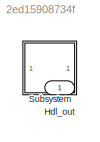
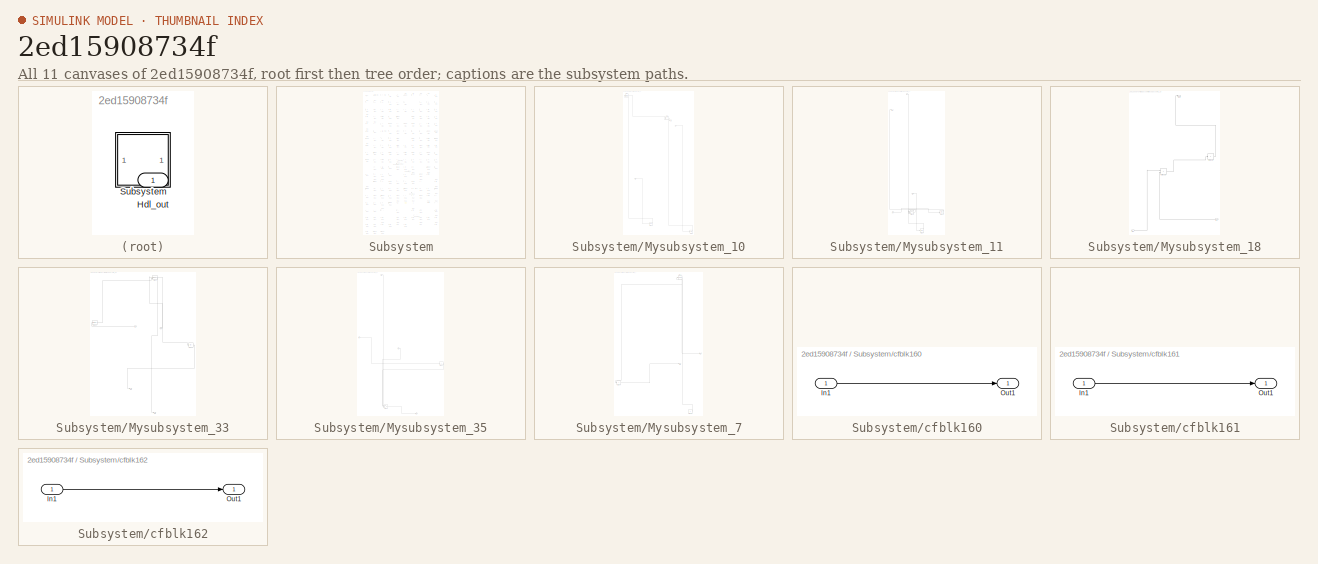
[diagram: thumbnail index - all 11 canvases of the model, root first then tree order]
MODEL slx_2ed15908734f
KIND model
CONFIG AbsTol = auto
CONFIG EnableMultiTasking = off
CONFIG FixedStep = auto
CONFIG MaxStep = auto
CONFIG MinStep = auto
CONFIG RelTol = 1e-3
CONFIG SampleTimeConstraint = Unconstrained
CONFIG SolverName = VariableStepAuto
CONFIG StartTime = 0.0
CONFIG StopTime = 10.0
BLOCK [Outport] Hdl_out
  OutDataTypeStr = uint8
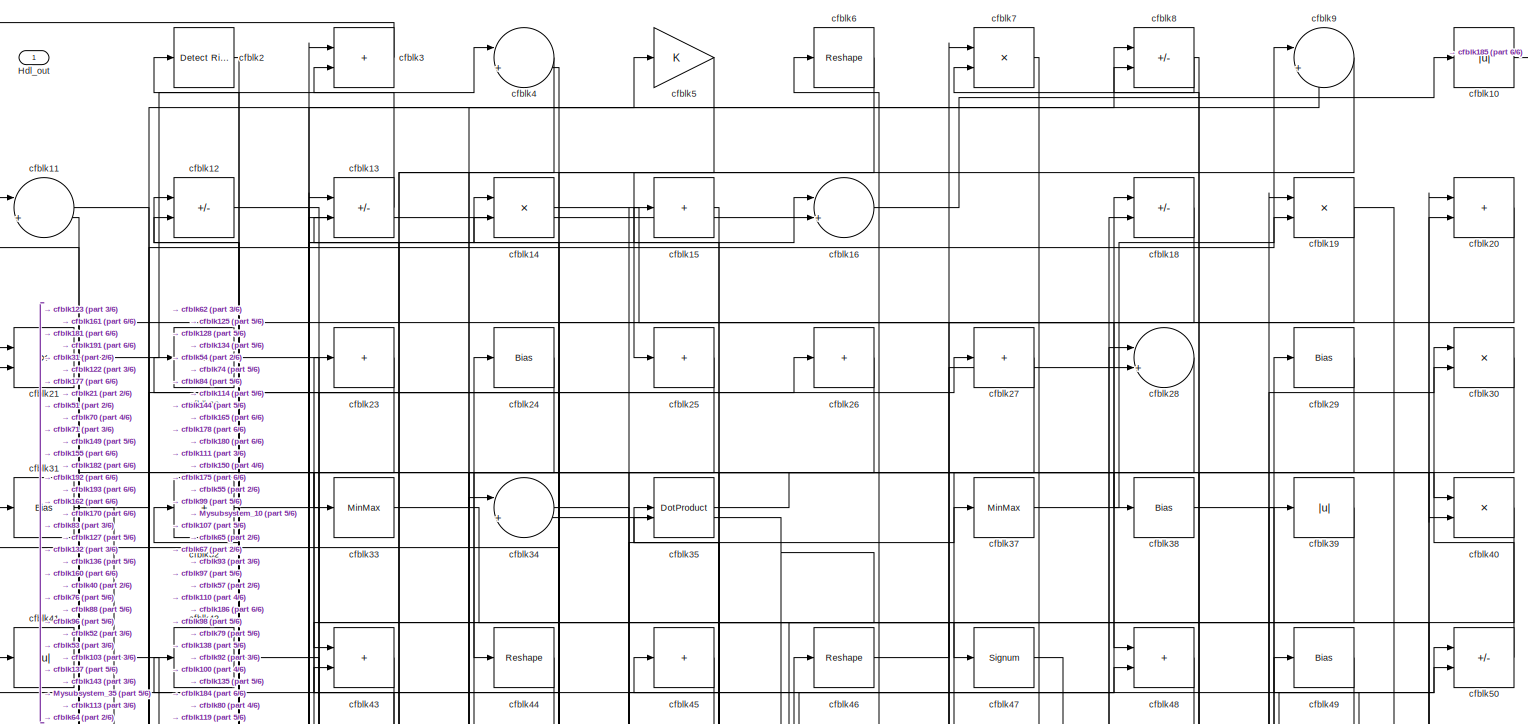
[diagram: Subsystem - part 1/6, full width, top band]
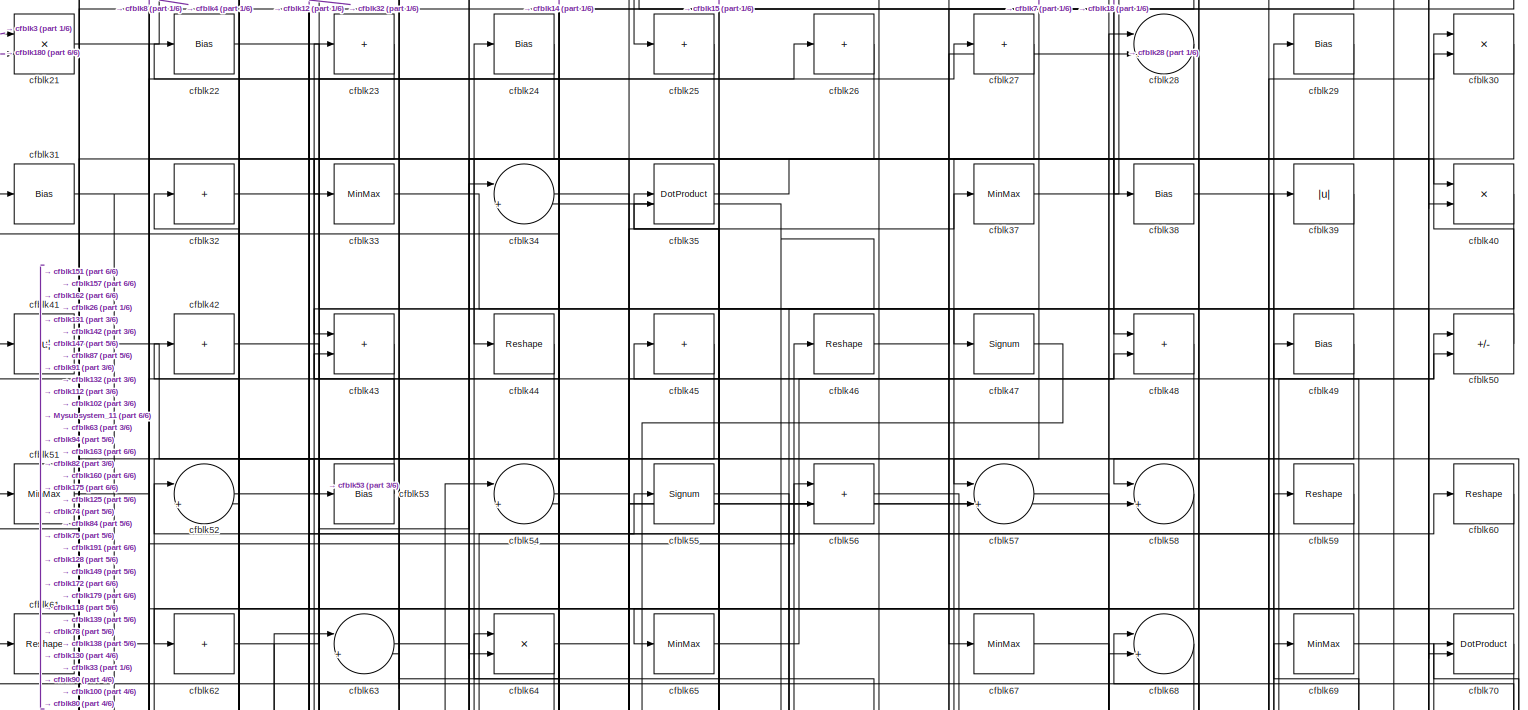
[diagram: Subsystem - part 2/6, full width, top band]
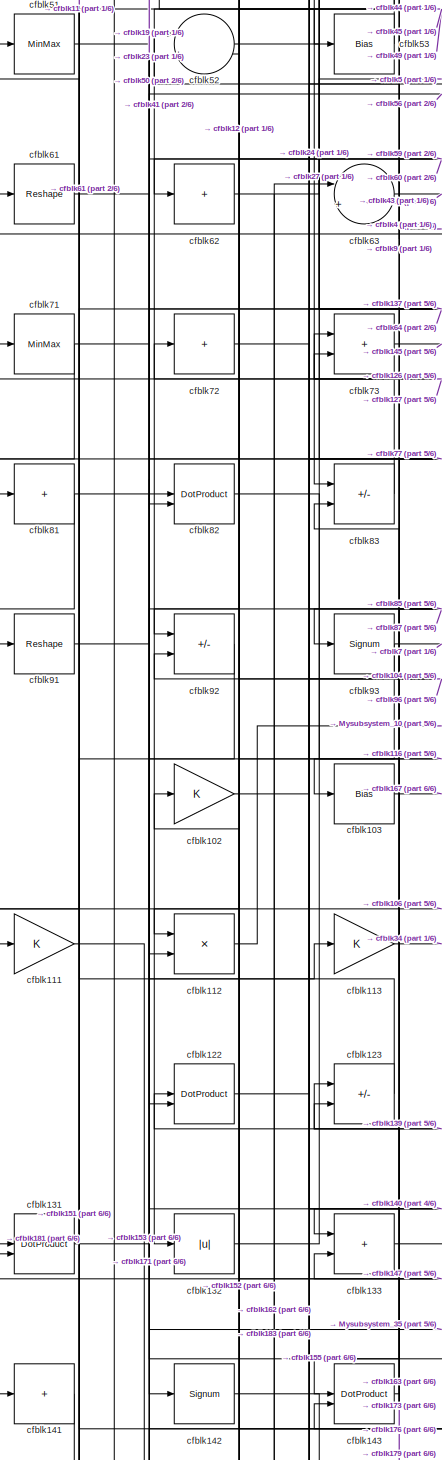
[diagram: Subsystem - part 3/6, middle left region]
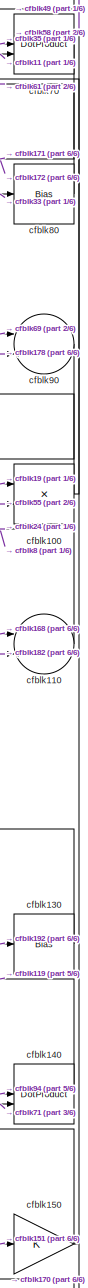
[diagram: Subsystem - part 4/6, middle right region]
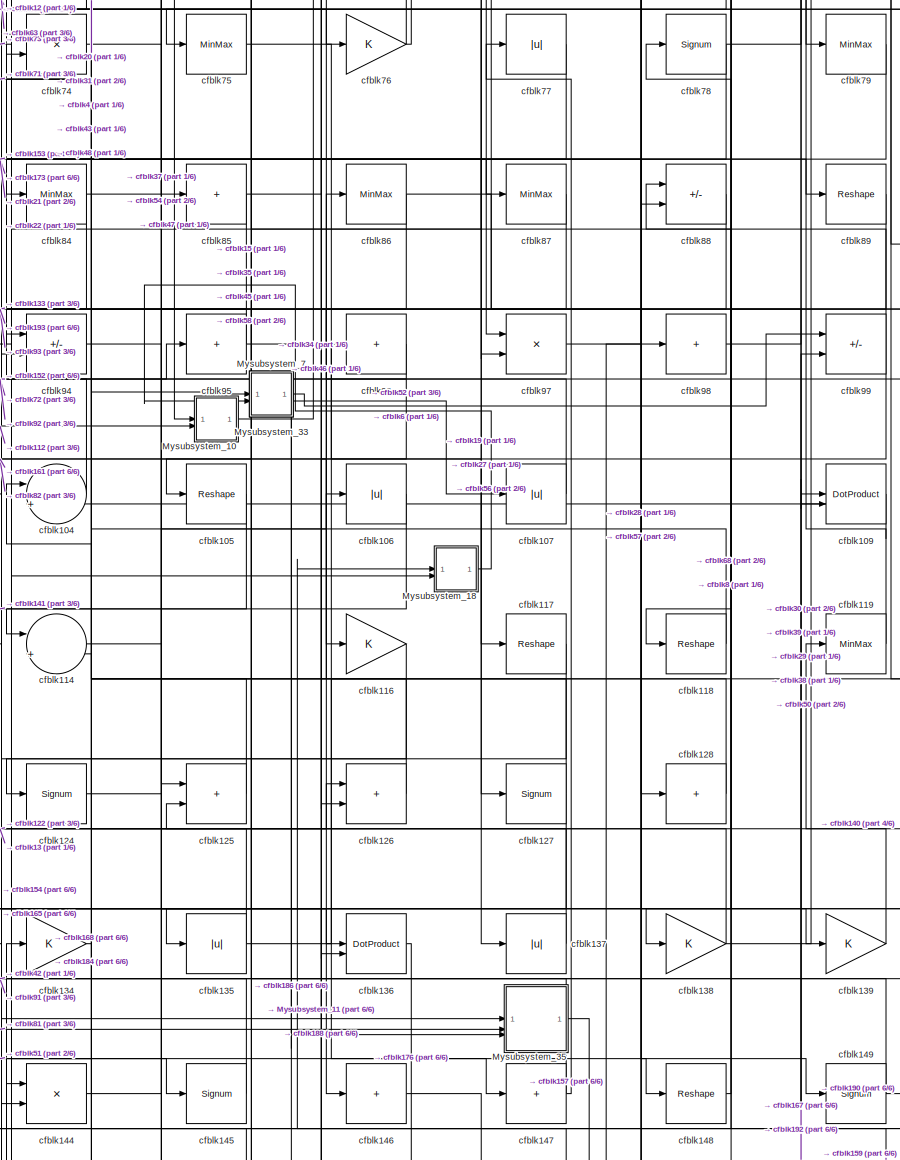
[diagram: Subsystem - part 5/6, central region]
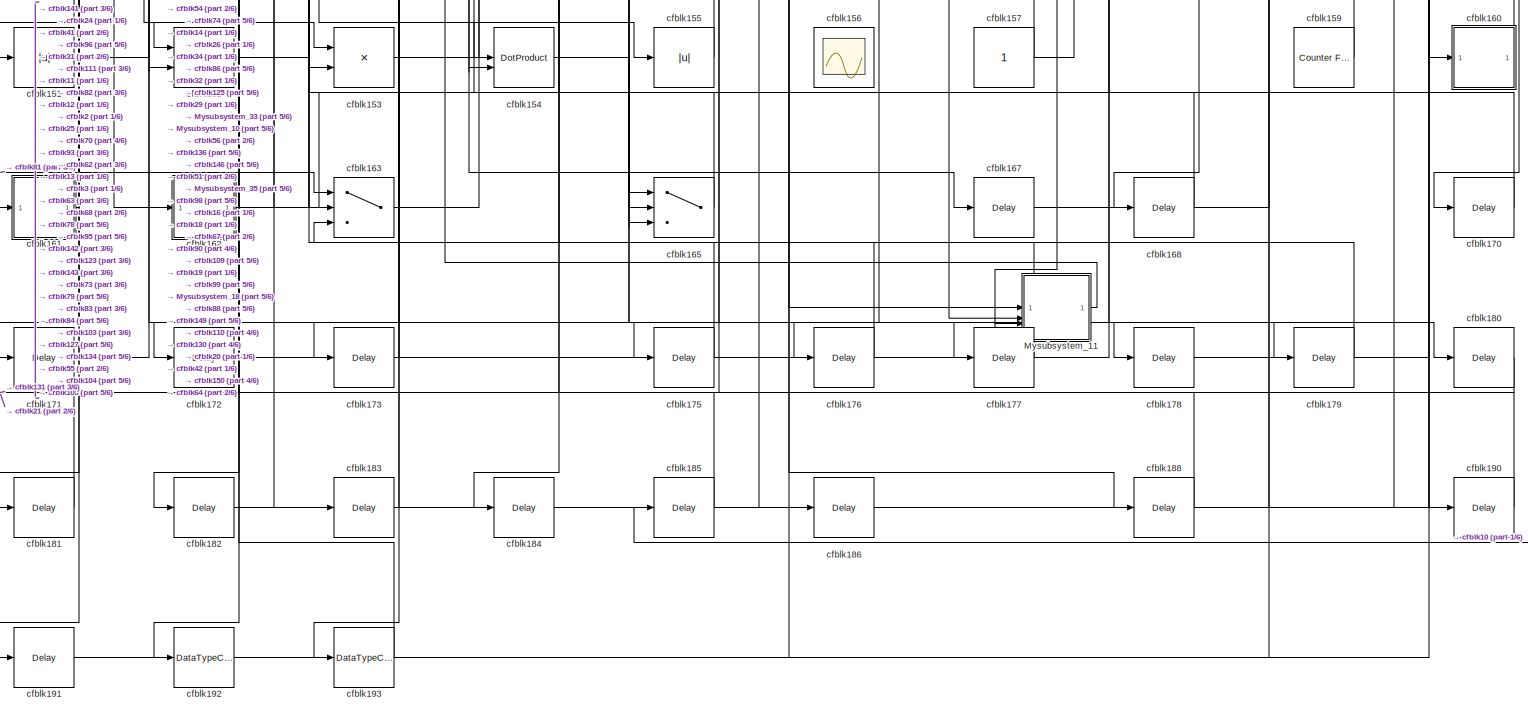
[diagram: Subsystem - part 6/6, full width, bottom band]
BLOCK [SubSystem] Subsystem
BLOCK [Outport] Subsystem/Hdl_out
  OutDataTypeStr = uint8
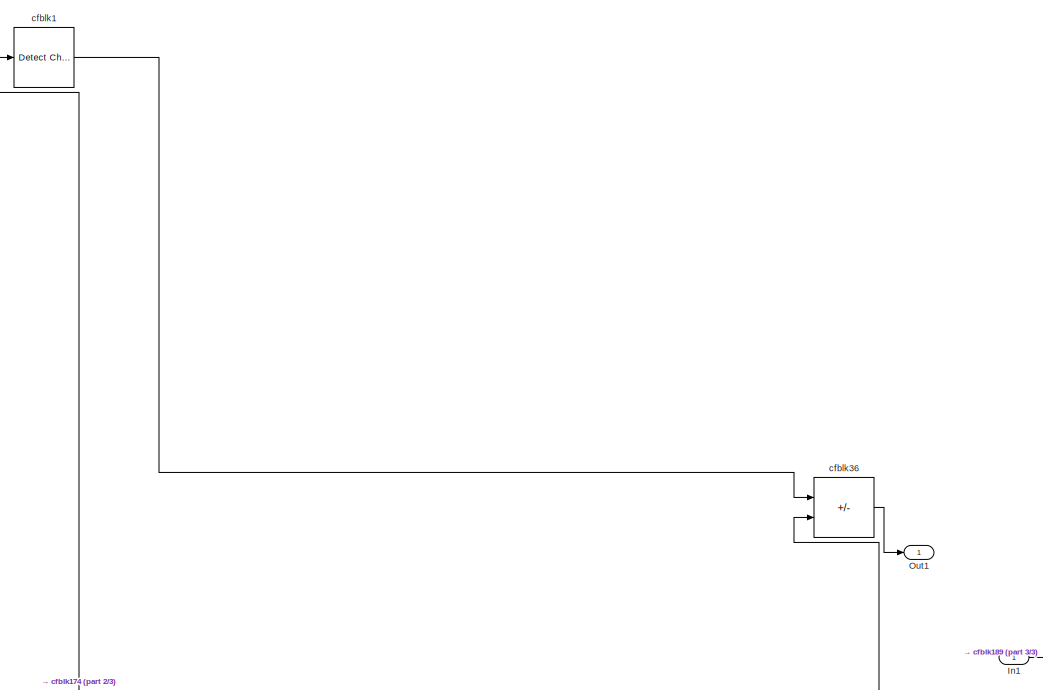
[diagram: Subsystem/Mysubsystem_10 - part 1/3, full width, top band]
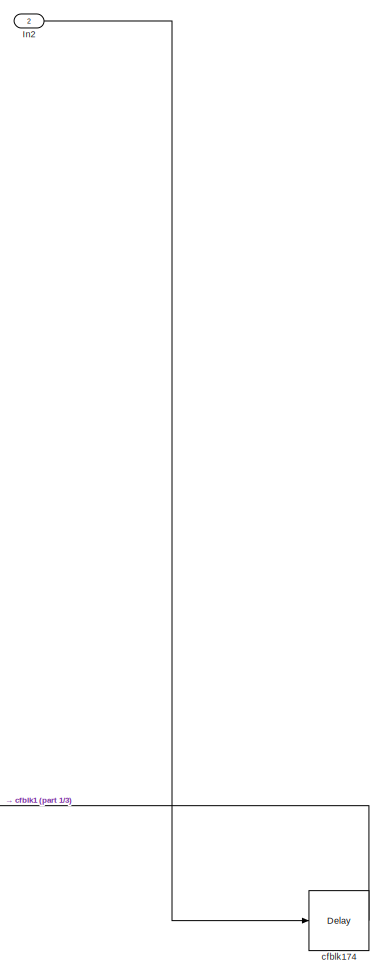
[diagram: Subsystem/Mysubsystem_10 - part 2/3, bottom left region]
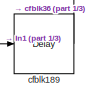
[diagram: Subsystem/Mysubsystem_10 - part 3/3, bottom right region]
BLOCK [SubSystem] Subsystem/Mysubsystem_10
  RTWFcnName = Mysubsystem_10
  RTWFcnNameOpts = User specified
  RTWFileNameOpts = Use function name
  RTWSystemCode = Reusable function
  TreatAsAtomicUnit = on
BLOCK [Inport] Subsystem/Mysubsystem_10/In1
BLOCK [Inport] Subsystem/Mysubsystem_10/In2
  Port = 2
BLOCK [Outport] Subsystem/Mysubsystem_10/Out1
BLOCK [Reference] Subsystem/Mysubsystem_10/cfblk1  REF=simulink/Logic and Bit
Operations/Detect
Change
  LibrarySourceBlock = hdlsllib/Logic and Bit\nOperations/Detect\nChange
  SourceBlock = simulink/Logic and Bit\nOperations/Detect\nChange
  SourceType = Detect Change
BLOCK [Delay] Subsystem/Mysubsystem_10/cfblk174
  InputPortMap = u0
  SampleTime = 1
BLOCK [Delay] Subsystem/Mysubsystem_10/cfblk189
  InputPortMap = u0
  SampleTime = 1
BLOCK [Sum] Subsystem/Mysubsystem_10/cfblk36
  IconShape = rectangular
  Inputs = +-
BLOCK [SubSystem] Subsystem/Mysubsystem_11
  RTWFcnName = Mysubsystem_11
  RTWFcnNameOpts = User specified
  RTWFileNameOpts = Use function name
  RTWSystemCode = Reusable function
  TreatAsAtomicUnit = on
BLOCK [Inport] Subsystem/Mysubsystem_11/In1
BLOCK [Inport] Subsystem/Mysubsystem_11/In2
  Port = 2
BLOCK [Inport] Subsystem/Mysubsystem_11/In3
  Port = 3
BLOCK [Outport] Subsystem/Mysubsystem_11/Out1
BLOCK [Switch] Subsystem/Mysubsystem_11/cfblk166
  InputSameDT = off
  SaturateOnIntegerOverflow = off
BLOCK [Delay] Subsystem/Mysubsystem_11/cfblk169
  InputPortMap = u0
  SampleTime = 1
BLOCK [Delay] Subsystem/Mysubsystem_11/cfblk187
  InputPortMap = u0
  SampleTime = 1
BLOCK [SubSystem] Subsystem/Mysubsystem_18
  RTWFcnName = Mysubsystem_18
  RTWFcnNameOpts = User specified
  RTWFileNameOpts = Use function name
  RTWSystemCode = Reusable function
  TreatAsAtomicUnit = on
BLOCK [Inport] Subsystem/Mysubsystem_18/In1
BLOCK [Inport] Subsystem/Mysubsystem_18/In2
  Port = 2
BLOCK [Outport] Subsystem/Mysubsystem_18/Out1
BLOCK [Sum] Subsystem/Mysubsystem_18/cfblk108
  IconShape = rectangular
  Inputs = +
BLOCK [Sum] Subsystem/Mysubsystem_18/cfblk115
  IconShape = rectangular
BLOCK [SubSystem] Subsystem/Mysubsystem_33
  RTWFcnName = Mysubsystem_33
  RTWFcnNameOpts = User specified
  RTWFileNameOpts = Use function name
  RTWSystemCode = Reusable function
  TreatAsAtomicUnit = on
BLOCK [Inport] Subsystem/Mysubsystem_33/In1
BLOCK [Inport] Subsystem/Mysubsystem_33/In2
  Port = 2
BLOCK [Outport] Subsystem/Mysubsystem_33/Out1
BLOCK [Outport] Subsystem/Mysubsystem_33/Out2
  Port = 2
BLOCK [MinMax] Subsystem/Mysubsystem_33/cfblk101
BLOCK [Abs] Subsystem/Mysubsystem_33/cfblk129
  SaturateOnIntegerOverflow = off
BLOCK [DotProduct] Subsystem/Mysubsystem_33/cfblk66
  OutDataTypeStr = Inherit: Inherit via internal rule
BLOCK [SubSystem] Subsystem/Mysubsystem_35
  RTWFcnName = Mysubsystem_35
  RTWFcnNameOpts = User specified
  RTWFileNameOpts = Use function name
  RTWSystemCode = Reusable function
  TreatAsAtomicUnit = on
BLOCK [Inport] Subsystem/Mysubsystem_35/In1
BLOCK [Inport] Subsystem/Mysubsystem_35/In2
  Port = 2
BLOCK [Inport] Subsystem/Mysubsystem_35/In3
  Port = 3
BLOCK [Outport] Subsystem/Mysubsystem_35/Out1
BLOCK [Sum] Subsystem/Mysubsystem_35/cfblk120
  IconShape = rectangular
  Inputs = +
BLOCK [Switch] Subsystem/Mysubsystem_35/cfblk164
  InputSameDT = off
  SaturateOnIntegerOverflow = off
BLOCK [SubSystem] Subsystem/Mysubsystem_7
  RTWFcnName = Mysubsystem_7
  RTWFcnNameOpts = User specified
  RTWFileNameOpts = Use function name
  RTWSystemCode = Reusable function
  TreatAsAtomicUnit = on
BLOCK [Outport] Subsystem/Mysubsystem_7/Out1
BLOCK [Outport] Subsystem/Mysubsystem_7/Out2
  Port = 2
BLOCK [Sum] Subsystem/Mysubsystem_7/cfblk121
  IconShape = rectangular
  Inputs = +
BLOCK [Constant] Subsystem/Mysubsystem_7/cfblk158
  SampleTime = -1
BLOCK [Reshape] Subsystem/Mysubsystem_7/cfblk17
BLOCK [Abs] Subsystem/cfblk10
  OutDataTypeStr = uint8
  SaturateOnIntegerOverflow = off
BLOCK [Product] Subsystem/cfblk100
  Inputs = */
  OutDataTypeStr = uint8
  RndMeth = Zero
  SaturateOnIntegerOverflow = on
BLOCK [Gain] Subsystem/cfblk102
  OutDataTypeStr = uint8
BLOCK [Bias] Subsystem/cfblk103
  Bias = 0.0
  SaturateOnIntegerOverflow = off
BLOCK [Sum] Subsystem/cfblk104
  Inputs = |++
  OutDataTypeStr = uint8
BLOCK [Reshape] Subsystem/cfblk105
BLOCK [Abs] Subsystem/cfblk106
  OutDataTypeStr = uint8
  SaturateOnIntegerOverflow = off
BLOCK [Abs] Subsystem/cfblk107
  OutDataTypeStr = uint8
  SaturateOnIntegerOverflow = off
BLOCK [DotProduct] Subsystem/cfblk109
  OutDataTypeStr = uint8
BLOCK [Sum] Subsystem/cfblk11
  Inputs = |++
  OutDataTypeStr = uint8
BLOCK [Sum] Subsystem/cfblk110
  Inputs = |++
  OutDataTypeStr = uint8
BLOCK [Gain] Subsystem/cfblk111
  OutDataTypeStr = uint8
BLOCK [Product] Subsystem/cfblk112
  Inputs = */
  OutDataTypeStr = uint8
  RndMeth = Zero
  SaturateOnIntegerOverflow = on
BLOCK [Gain] Subsystem/cfblk113
  OutDataTypeStr = uint8
BLOCK [Sum] Subsystem/cfblk114
  Inputs = |++
  OutDataTypeStr = uint8
BLOCK [Gain] Subsystem/cfblk116
  OutDataTypeStr = uint8
BLOCK [Reshape] Subsystem/cfblk117
BLOCK [Reshape] Subsystem/cfblk118
BLOCK [MinMax] Subsystem/cfblk119
  OutDataTypeStr = uint8
BLOCK [Sum] Subsystem/cfblk12
  IconShape = rectangular
  Inputs = +-
  OutDataTypeStr = uint8
BLOCK [DotProduct] Subsystem/cfblk122
  OutDataTypeStr = uint8
BLOCK [Sum] Subsystem/cfblk123
  IconShape = rectangular
  Inputs = +-
  OutDataTypeStr = uint8
BLOCK [Signum] Subsystem/cfblk124
BLOCK [Sum] Subsystem/cfblk125
  IconShape = rectangular
  OutDataTypeStr = uint8
BLOCK [Sum] Subsystem/cfblk126
  IconShape = rectangular
  OutDataTypeStr = uint8
BLOCK [Signum] Subsystem/cfblk127
BLOCK [Sum] Subsystem/cfblk128
  IconShape = rectangular
  Inputs = +
  OutDataTypeStr = uint8
BLOCK [Sum] Subsystem/cfblk13
  IconShape = rectangular
  Inputs = +-
  OutDataTypeStr = uint8
BLOCK [Bias] Subsystem/cfblk130
  Bias = 0.0
  SaturateOnIntegerOverflow = off
BLOCK [DotProduct] Subsystem/cfblk131
  OutDataTypeStr = uint8
BLOCK [Abs] Subsystem/cfblk132
  OutDataTypeStr = uint8
  SaturateOnIntegerOverflow = off
BLOCK [Sum] Subsystem/cfblk133
  IconShape = rectangular
  OutDataTypeStr = uint8
BLOCK [Gain] Subsystem/cfblk134
  OutDataTypeStr = uint8
BLOCK [Abs] Subsystem/cfblk135
  OutDataTypeStr = uint8
  SaturateOnIntegerOverflow = off
BLOCK [DotProduct] Subsystem/cfblk136
  OutDataTypeStr = uint8
BLOCK [Abs] Subsystem/cfblk137
  OutDataTypeStr = uint8
  SaturateOnIntegerOverflow = off
BLOCK [Gain] Subsystem/cfblk138
  OutDataTypeStr = uint8
BLOCK [Gain] Subsystem/cfblk139
  OutDataTypeStr = uint8
BLOCK [Product] Subsystem/cfblk14
  Inputs = */
  OutDataTypeStr = uint8
  RndMeth = Zero
  SaturateOnIntegerOverflow = on
BLOCK [DotProduct] Subsystem/cfblk140
  OutDataTypeStr = uint8
BLOCK [Sum] Subsystem/cfblk141
  IconShape = rectangular
  Inputs = +
  OutDataTypeStr = uint8
BLOCK [Signum] Subsystem/cfblk142
BLOCK [DotProduct] Subsystem/cfblk143
  OutDataTypeStr = uint8
BLOCK [Product] Subsystem/cfblk144
  Inputs = */
  OutDataTypeStr = uint8
  RndMeth = Zero
  SaturateOnIntegerOverflow = on
BLOCK [Signum] Subsystem/cfblk145
BLOCK [Sum] Subsystem/cfblk146
  IconShape = rectangular
  Inputs = +
  OutDataTypeStr = uint8
BLOCK [Sum] Subsystem/cfblk147
  IconShape = rectangular
  Inputs = +
  OutDataTypeStr = uint8
BLOCK [Reshape] Subsystem/cfblk148
BLOCK [Signum] Subsystem/cfblk149
BLOCK [Sum] Subsystem/cfblk15
  IconShape = rectangular
  Inputs = +
  OutDataTypeStr = uint8
BLOCK [Gain] Subsystem/cfblk150
  OutDataTypeStr = uint8
BLOCK [Abs] Subsystem/cfblk151
  OutDataTypeStr = uint8
  SaturateOnIntegerOverflow = off
BLOCK [Product] Subsystem/cfblk152
  Inputs = */
  OutDataTypeStr = uint8
  RndMeth = Zero
  SaturateOnIntegerOverflow = on
BLOCK [Product] Subsystem/cfblk153
  Inputs = */
  OutDataTypeStr = uint8
  RndMeth = Zero
  SaturateOnIntegerOverflow = on
BLOCK [DotProduct] Subsystem/cfblk154
  OutDataTypeStr = uint8
BLOCK [Abs] Subsystem/cfblk155
  OutDataTypeStr = uint8
  SaturateOnIntegerOverflow = off
BLOCK [Scope] Subsystem/cfblk156
  Floating = on
  NumInputPorts = 1
  ScopeSpecificationString = Simulink.scopes.TimeScopeBlockCfg('CurrentConfiguration', extmgr.ConfigurationSet(extmgr.Configuration('Core','General UI',true,'FigureColor',[0.156862745098039 0.156862745098039 0.156862745098039]),extmgr.Configuration('Core','Source UI',true),extmgr.Configuration('Sources','WiredSimulink',true,'DataLoggingSaveFormat','StructureWithTime','DataLoggingLimitDataPoints',true,'DataLoggingDecimation','...<+2674ch>
BLOCK [Constant] Subsystem/cfblk157
  OutDataTypeStr = uint8
  SampleTime = -1
BLOCK [Reference] Subsystem/cfblk159  REF=hdlsllib/Sources/Counter
Free-Running
  SourceBlock = hdlsllib/Sources/Counter\nFree-Running
  SourceType = Counter Free-Running
BLOCK [Sum] Subsystem/cfblk16
  Inputs = |++
  OutDataTypeStr = uint8
BLOCK [SubSystem] Subsystem/cfblk160
  LibrarySourceBlock = hdlsllib/Ports &\nSubsystems/Subsystem
BLOCK [Inport] Subsystem/cfblk160/In1
BLOCK [Outport] Subsystem/cfblk160/Out1
BLOCK [SubSystem] Subsystem/cfblk161
  LibrarySourceBlock = hdlsllib/Ports &\nSubsystems/Subsystem
BLOCK [Inport] Subsystem/cfblk161/In1
BLOCK [Outport] Subsystem/cfblk161/Out1
BLOCK [SubSystem] Subsystem/cfblk162
  LibrarySourceBlock = hdlsllib/Ports &\nSubsystems/Subsystem
BLOCK [Inport] Subsystem/cfblk162/In1
BLOCK [Outport] Subsystem/cfblk162/Out1
BLOCK [Switch] Subsystem/cfblk163
  InputSameDT = off
  OutDataTypeStr = uint8
  SaturateOnIntegerOverflow = off
BLOCK [Switch] Subsystem/cfblk165
  InputSameDT = off
  OutDataTypeStr = uint8
  SaturateOnIntegerOverflow = off
BLOCK [Delay] Subsystem/cfblk167
  InputPortMap = u0
  SampleTime = 1
BLOCK [Delay] Subsystem/cfblk168
  InputPortMap = u0
  SampleTime = 1
BLOCK [Delay] Subsystem/cfblk170
  InputPortMap = u0
  SampleTime = 1
BLOCK [Delay] Subsystem/cfblk171
  InputPortMap = u0
  SampleTime = 1
BLOCK [Delay] Subsystem/cfblk172
  InputPortMap = u0
  SampleTime = 1
BLOCK [Delay] Subsystem/cfblk173
  InputPortMap = u0
  SampleTime = 1
BLOCK [Delay] Subsystem/cfblk175
  InputPortMap = u0
  SampleTime = 1
BLOCK [Delay] Subsystem/cfblk176
  InputPortMap = u0
  SampleTime = 1
BLOCK [Delay] Subsystem/cfblk177
  InputPortMap = u0
  SampleTime = 1
BLOCK [Delay] Subsystem/cfblk178
  InputPortMap = u0
  SampleTime = 1
BLOCK [Delay] Subsystem/cfblk179
  InputPortMap = u0
  SampleTime = 1
BLOCK [Sum] Subsystem/cfblk18
  IconShape = rectangular
  Inputs = +-
  OutDataTypeStr = uint8
BLOCK [Delay] Subsystem/cfblk180
  InputPortMap = u0
  SampleTime = 1
BLOCK [Delay] Subsystem/cfblk181
  InputPortMap = u0
  SampleTime = 1
BLOCK [Delay] Subsystem/cfblk182
  InputPortMap = u0
  SampleTime = 1
BLOCK [Delay] Subsystem/cfblk183
  InputPortMap = u0
  SampleTime = 1
BLOCK [Delay] Subsystem/cfblk184
  InputPortMap = u0
  SampleTime = 1
BLOCK [Delay] Subsystem/cfblk185
  InputPortMap = u0
  SampleTime = 1
BLOCK [Delay] Subsystem/cfblk186
  InputPortMap = u0
  SampleTime = 1
BLOCK [Delay] Subsystem/cfblk188
  InputPortMap = u0
  SampleTime = 1
BLOCK [Product] Subsystem/cfblk19
  Inputs = */
  OutDataTypeStr = uint8
  RndMeth = Zero
  SaturateOnIntegerOverflow = on
BLOCK [Delay] Subsystem/cfblk190
  InputPortMap = u0
  SampleTime = 1
BLOCK [Delay] Subsystem/cfblk191
  InputPortMap = u0
  SampleTime = 1
BLOCK [DataTypeConversion] Subsystem/cfblk192
  OutDataTypeStr = uint8
  RndMeth = Floor
  SaturateOnIntegerOverflow = off
BLOCK [DataTypeConversion] Subsystem/cfblk193
  OutDataTypeStr = uint8
  RndMeth = Floor
  SaturateOnIntegerOverflow = off
BLOCK [Reference] Subsystem/cfblk2  REF=hdlsllib/Logic and Bit
Operations/Detect Rise
Nonnegative
  SourceBlock = hdlsllib/Logic and Bit\nOperations/Detect Rise\nNonnegative
  SourceType = Detect Rise Nonnegative
BLOCK [Sum] Subsystem/cfblk20
  IconShape = rectangular
  OutDataTypeStr = uint8
BLOCK [Product] Subsystem/cfblk21
  Inputs = */
  OutDataTypeStr = uint8
  RndMeth = Zero
  SaturateOnIntegerOverflow = on
BLOCK [Bias] Subsystem/cfblk22
  Bias = 0.0
  SaturateOnIntegerOverflow = off
BLOCK [Sum] Subsystem/cfblk23
  IconShape = rectangular
  Inputs = +
  OutDataTypeStr = uint8
BLOCK [Bias] Subsystem/cfblk24
  Bias = 0.0
  SaturateOnIntegerOverflow = off
BLOCK [Sum] Subsystem/cfblk25
  IconShape = rectangular
  Inputs = +
  OutDataTypeStr = uint8
BLOCK [Sum] Subsystem/cfblk26
  IconShape = rectangular
  Inputs = +
  OutDataTypeStr = uint8
BLOCK [Sum] Subsystem/cfblk27
  IconShape = rectangular
  Inputs = +
  OutDataTypeStr = uint8
BLOCK [Sum] Subsystem/cfblk28
  Inputs = |++
  OutDataTypeStr = uint8
BLOCK [Bias] Subsystem/cfblk29
  Bias = 0.0
  SaturateOnIntegerOverflow = off
BLOCK [Sum] Subsystem/cfblk3
  IconShape = rectangular
  OutDataTypeStr = uint8
BLOCK [Product] Subsystem/cfblk30
  Inputs = */
  OutDataTypeStr = uint8
  RndMeth = Zero
  SaturateOnIntegerOverflow = on
BLOCK [Bias] Subsystem/cfblk31
  Bias = 0.0
  SaturateOnIntegerOverflow = off
BLOCK [Sum] Subsystem/cfblk32
  IconShape = rectangular
  Inputs = +
  OutDataTypeStr = uint8
BLOCK [MinMax] Subsystem/cfblk33
  OutDataTypeStr = uint8
BLOCK [Sum] Subsystem/cfblk34
  Inputs = |++
  OutDataTypeStr = uint8
BLOCK [DotProduct] Subsystem/cfblk35
  OutDataTypeStr = uint8
BLOCK [MinMax] Subsystem/cfblk37
  OutDataTypeStr = uint8
BLOCK [Bias] Subsystem/cfblk38
  Bias = 0.0
  SaturateOnIntegerOverflow = off
BLOCK [Abs] Subsystem/cfblk39
  OutDataTypeStr = uint8
  SaturateOnIntegerOverflow = off
BLOCK [Sum] Subsystem/cfblk4
  Inputs = |++
  OutDataTypeStr = uint8
BLOCK [Product] Subsystem/cfblk40
  Inputs = */
  OutDataTypeStr = uint8
  RndMeth = Zero
  SaturateOnIntegerOverflow = on
BLOCK [Abs] Subsystem/cfblk41
  OutDataTypeStr = uint8
  SaturateOnIntegerOverflow = off
BLOCK [Sum] Subsystem/cfblk42
  IconShape = rectangular
  Inputs = +
  OutDataTypeStr = uint8
BLOCK [Sum] Subsystem/cfblk43
  IconShape = rectangular
  OutDataTypeStr = uint8
BLOCK [Reshape] Subsystem/cfblk44
BLOCK [Sum] Subsystem/cfblk45
  IconShape = rectangular
  Inputs = +
  OutDataTypeStr = uint8
BLOCK [Reshape] Subsystem/cfblk46
BLOCK [Signum] Subsystem/cfblk47
BLOCK [Sum] Subsystem/cfblk48
  IconShape = rectangular
  OutDataTypeStr = uint8
BLOCK [Bias] Subsystem/cfblk49
  Bias = 0.0
  SaturateOnIntegerOverflow = off
BLOCK [Gain] Subsystem/cfblk5
  OutDataTypeStr = uint8
BLOCK [Sum] Subsystem/cfblk50
  IconShape = rectangular
  Inputs = +-
  OutDataTypeStr = uint8
BLOCK [MinMax] Subsystem/cfblk51
  OutDataTypeStr = uint8
BLOCK [Sum] Subsystem/cfblk52
  Inputs = |++
  OutDataTypeStr = uint8
BLOCK [Bias] Subsystem/cfblk53
  Bias = 0.0
  SaturateOnIntegerOverflow = off
BLOCK [Sum] Subsystem/cfblk54
  Inputs = |++
  OutDataTypeStr = uint8
BLOCK [Signum] Subsystem/cfblk55
BLOCK [Sum] Subsystem/cfblk56
  IconShape = rectangular
  OutDataTypeStr = uint8
BLOCK [Sum] Subsystem/cfblk57
  Inputs = |++
  OutDataTypeStr = uint8
BLOCK [Sum] Subsystem/cfblk58
  Inputs = |++
  OutDataTypeStr = uint8
BLOCK [Reshape] Subsystem/cfblk59
BLOCK [Reshape] Subsystem/cfblk6
BLOCK [Reshape] Subsystem/cfblk60
BLOCK [Reshape] Subsystem/cfblk61
BLOCK [Sum] Subsystem/cfblk62
  IconShape = rectangular
  Inputs = +
  OutDataTypeStr = uint8
BLOCK [Sum] Subsystem/cfblk63
  Inputs = |++
  OutDataTypeStr = uint8
BLOCK [Product] Subsystem/cfblk64
  Inputs = */
  OutDataTypeStr = uint8
  RndMeth = Zero
  SaturateOnIntegerOverflow = on
BLOCK [MinMax] Subsystem/cfblk65
  OutDataTypeStr = uint8
BLOCK [MinMax] Subsystem/cfblk67
  OutDataTypeStr = uint8
BLOCK [Sum] Subsystem/cfblk68
  Inputs = |++
  OutDataTypeStr = uint8
BLOCK [MinMax] Subsystem/cfblk69
  OutDataTypeStr = uint8
BLOCK [Product] Subsystem/cfblk7
  Inputs = */
  OutDataTypeStr = uint8
  RndMeth = Zero
  SaturateOnIntegerOverflow = on
BLOCK [DotProduct] Subsystem/cfblk70
  OutDataTypeStr = uint8
BLOCK [MinMax] Subsystem/cfblk71
  OutDataTypeStr = uint8
BLOCK [Sum] Subsystem/cfblk72
  IconShape = rectangular
  Inputs = +
  OutDataTypeStr = uint8
BLOCK [Sum] Subsystem/cfblk73
  IconShape = rectangular
  OutDataTypeStr = uint8
BLOCK [Product] Subsystem/cfblk74
  Inputs = */
  OutDataTypeStr = uint8
  RndMeth = Zero
  SaturateOnIntegerOverflow = on
BLOCK [MinMax] Subsystem/cfblk75
  OutDataTypeStr = uint8
BLOCK [Gain] Subsystem/cfblk76
  OutDataTypeStr = uint8
BLOCK [Abs] Subsystem/cfblk77
  OutDataTypeStr = uint8
  SaturateOnIntegerOverflow = off
BLOCK [Signum] Subsystem/cfblk78
BLOCK [MinMax] Subsystem/cfblk79
  OutDataTypeStr = uint8
BLOCK [Sum] Subsystem/cfblk8
  IconShape = rectangular
  Inputs = +-
  OutDataTypeStr = uint8
BLOCK [Bias] Subsystem/cfblk80
  Bias = 0.0
  SaturateOnIntegerOverflow = off
BLOCK [Sum] Subsystem/cfblk81
  IconShape = rectangular
  Inputs = +
  OutDataTypeStr = uint8
BLOCK [DotProduct] Subsystem/cfblk82
  OutDataTypeStr = uint8
BLOCK [Sum] Subsystem/cfblk83
  IconShape = rectangular
  Inputs = +-
  OutDataTypeStr = uint8
BLOCK [MinMax] Subsystem/cfblk84
  OutDataTypeStr = uint8
BLOCK [Sum] Subsystem/cfblk85
  IconShape = rectangular
  Inputs = +
  OutDataTypeStr = uint8
BLOCK [MinMax] Subsystem/cfblk86
  OutDataTypeStr = uint8
BLOCK [MinMax] Subsystem/cfblk87
  OutDataTypeStr = uint8
BLOCK [Sum] Subsystem/cfblk88
  IconShape = rectangular
  Inputs = +-
  OutDataTypeStr = uint8
BLOCK [Reshape] Subsystem/cfblk89
BLOCK [Sum] Subsystem/cfblk9
  Inputs = |++
  OutDataTypeStr = uint8
BLOCK [Sum] Subsystem/cfblk90
  Inputs = |++
  OutDataTypeStr = uint8
BLOCK [Reshape] Subsystem/cfblk91
BLOCK [Sum] Subsystem/cfblk92
  IconShape = rectangular
  Inputs = +-
  OutDataTypeStr = uint8
BLOCK [Signum] Subsystem/cfblk93
BLOCK [Sum] Subsystem/cfblk94
  IconShape = rectangular
  Inputs = +-
  OutDataTypeStr = uint8
BLOCK [Sum] Subsystem/cfblk95
  IconShape = rectangular
  Inputs = +
  OutDataTypeStr = uint8
BLOCK [Sum] Subsystem/cfblk96
  IconShape = rectangular
  Inputs = +
  OutDataTypeStr = uint8
BLOCK [Product] Subsystem/cfblk97
  Inputs = */
  OutDataTypeStr = uint8
  RndMeth = Zero
  SaturateOnIntegerOverflow = on
BLOCK [Sum] Subsystem/cfblk98
  IconShape = rectangular
  Inputs = +
  OutDataTypeStr = uint8
BLOCK [Sum] Subsystem/cfblk99
  IconShape = rectangular
  Inputs = +-
  OutDataTypeStr = uint8
LINE Subsystem/Mysubsystem_10/In1:1 -> Subsystem/Mysubsystem_10/cfblk189:1
LINE Subsystem/Mysubsystem_10/In2:1 -> Subsystem/Mysubsystem_10/cfblk174:1
LINE Subsystem/Mysubsystem_10/cfblk174:1 -> Subsystem/Mysubsystem_10/cfblk1:1
LINE Subsystem/Mysubsystem_10/cfblk189:1 -> Subsystem/Mysubsystem_10/cfblk36:2
LINE Subsystem/Mysubsystem_10/cfblk1:1 -> Subsystem/Mysubsystem_10/cfblk36:1
LINE Subsystem/Mysubsystem_10/cfblk36:1 -> Subsystem/Mysubsystem_10/Out1:1
NET Subsystem/Mysubsystem_10:1 -> Subsystem/Mysubsystem_11:1, Subsystem/cfblk34:2
LINE Subsystem/Mysubsystem_11/In1:1 -> Subsystem/Mysubsystem_11/cfblk166:3
LINE Subsystem/Mysubsystem_11/In2:1 -> Subsystem/Mysubsystem_11/cfblk187:1
LINE Subsystem/Mysubsystem_11/In3:1 -> Subsystem/Mysubsystem_11/cfblk169:1
LINE Subsystem/Mysubsystem_11/cfblk166:1 -> Subsystem/Mysubsystem_11/Out1:1
LINE Subsystem/Mysubsystem_11/cfblk169:1 -> Subsystem/Mysubsystem_11/cfblk166:2
LINE Subsystem/Mysubsystem_11/cfblk187:1 -> Subsystem/Mysubsystem_11/cfblk166:1
LINE Subsystem/Mysubsystem_11:1 -> Subsystem/cfblk54:1
LINE Subsystem/Mysubsystem_18/In1:1 -> Subsystem/Mysubsystem_18/cfblk115:2
LINE Subsystem/Mysubsystem_18/In2:1 -> Subsystem/Mysubsystem_18/cfblk115:1
LINE Subsystem/Mysubsystem_18/cfblk108:1 -> Subsystem/Mysubsystem_18/Out1:1
LINE Subsystem/Mysubsystem_18/cfblk115:1 -> Subsystem/Mysubsystem_18/cfblk108:1
LINE Subsystem/Mysubsystem_18:1 -> Subsystem/Mysubsystem_33:2
LINE Subsystem/Mysubsystem_33/In1:1 -> Subsystem/Mysubsystem_33/cfblk101:1
LINE Subsystem/Mysubsystem_33/In2:1 -> Subsystem/Mysubsystem_33/cfblk66:1
LINE Subsystem/Mysubsystem_33/cfblk101:1 -> Subsystem/Mysubsystem_33/cfblk66:2
LINE Subsystem/Mysubsystem_33/cfblk129:1 -> Subsystem/Mysubsystem_33/Out1:1
NET Subsystem/Mysubsystem_33/cfblk66:1 -> Subsystem/Mysubsystem_33/Out2:1, Subsystem/Mysubsystem_33/cfblk129:1
LINE Subsystem/Mysubsystem_33:1 -> Subsystem/Mysubsystem_35:3
LINE Subsystem/Mysubsystem_33:2 -> Subsystem/cfblk186:1
LINE Subsystem/Mysubsystem_35/In1:1 -> Subsystem/Mysubsystem_35/cfblk164:3
LINE Subsystem/Mysubsystem_35/In2:1 -> Subsystem/Mysubsystem_35/cfblk120:1
LINE Subsystem/Mysubsystem_35/In3:1 -> Subsystem/Mysubsystem_35/cfblk164:1
LINE Subsystem/Mysubsystem_35/cfblk120:1 -> Subsystem/Mysubsystem_35/cfblk164:2
LINE Subsystem/Mysubsystem_35/cfblk164:1 -> Subsystem/Mysubsystem_35/Out1:1
LINE Subsystem/Mysubsystem_35:1 -> Subsystem/Mysubsystem_11:3
LINE Subsystem/Mysubsystem_7/cfblk121:1 -> Subsystem/Mysubsystem_7/Out2:1
LINE Subsystem/Mysubsystem_7/cfblk158:1 -> Subsystem/Mysubsystem_7/cfblk17:1
NET Subsystem/Mysubsystem_7/cfblk17:1 -> Subsystem/Mysubsystem_7/Out1:1, Subsystem/Mysubsystem_7/cfblk121:1
LINE Subsystem/Mysubsystem_7:1 -> Subsystem/cfblk99:1
LINE Subsystem/Mysubsystem_7:2 -> Subsystem/cfblk107:1
NET Subsystem/cfblk100:1 -> Subsystem/cfblk49:1, Subsystem/cfblk58:1
LINE Subsystem/cfblk102:1 -> Subsystem/cfblk60:1
LINE Subsystem/cfblk103:1 -> Subsystem/cfblk167:1
LINE Subsystem/cfblk104:1 -> Subsystem/cfblk72:1
LINE Subsystem/cfblk105:1 -> Subsystem/cfblk154:1
LINE Subsystem/cfblk106:1 -> Subsystem/cfblk141:1
LINE Subsystem/cfblk107:1 -> Subsystem/cfblk46:1
LINE Subsystem/cfblk109:1 -> Subsystem/cfblk104:2
LINE Subsystem/cfblk10:1 -> Subsystem/cfblk185:1
NET Subsystem/cfblk110:1 -> Subsystem/cfblk24:1, Subsystem/cfblk8:2
LINE Subsystem/cfblk111:1 -> Subsystem/cfblk153:1
LINE Subsystem/cfblk112:1 -> Subsystem/Mysubsystem_10:2
LINE Subsystem/cfblk113:1 -> Subsystem/cfblk34:1
LINE Subsystem/cfblk114:1 -> Subsystem/cfblk37:1
LINE Subsystem/cfblk116:1 -> Subsystem/cfblk124:1
LINE Subsystem/cfblk117:1 -> Subsystem/cfblk144:2
LINE Subsystem/cfblk118:1 -> Subsystem/cfblk31:1
LINE Subsystem/cfblk119:1 -> Subsystem/cfblk29:1
NET Subsystem/cfblk11:1 -> Subsystem/cfblk177:1, Subsystem/cfblk70:2
LINE Subsystem/cfblk122:1 -> Subsystem/cfblk9:2
NET Subsystem/cfblk123:1 -> Subsystem/cfblk102:1, Subsystem/cfblk11:2
LINE Subsystem/cfblk124:1 -> Subsystem/cfblk106:1
LINE Subsystem/cfblk125:1 -> Subsystem/cfblk22:1
LINE Subsystem/cfblk126:1 -> Subsystem/cfblk71:1
NET Subsystem/cfblk127:1 -> Subsystem/cfblk154:2, Subsystem/cfblk73:1
NET Subsystem/cfblk128:1 -> Subsystem/Mysubsystem_33:1, Subsystem/cfblk43:2, Subsystem/cfblk86:1
NET Subsystem/cfblk12:1 -> Subsystem/cfblk40:2, Subsystem/cfblk76:1
LINE Subsystem/cfblk130:1 -> Subsystem/cfblk69:1
NET Subsystem/cfblk131:1 -> Subsystem/cfblk113:1, Subsystem/cfblk50:2
LINE Subsystem/cfblk132:1 -> Subsystem/cfblk27:1
LINE Subsystem/cfblk133:1 -> Subsystem/cfblk126:1
NET Subsystem/cfblk134:1 -> Subsystem/cfblk184:1, Subsystem/cfblk4:2
NET Subsystem/cfblk135:1 -> Subsystem/cfblk114:2, Subsystem/cfblk20:1
LINE Subsystem/cfblk136:1 -> Subsystem/cfblk176:1
LINE Subsystem/cfblk137:1 -> Subsystem/cfblk13:2
NET Subsystem/cfblk138:1 -> Subsystem/cfblk35:1, Subsystem/cfblk50:1
NET Subsystem/cfblk139:1 -> Subsystem/cfblk122:1, Subsystem/cfblk68:1
LINE Subsystem/cfblk13:1 -> Subsystem/cfblk3:2
LINE Subsystem/cfblk140:1 -> Subsystem/cfblk119:1
LINE Subsystem/cfblk141:1 -> Subsystem/cfblk151:1
LINE Subsystem/cfblk142:1 -> Subsystem/cfblk155:1
LINE Subsystem/cfblk143:1 -> Subsystem/cfblk123:1
LINE Subsystem/cfblk144:1 -> Subsystem/cfblk48:2
LINE Subsystem/cfblk145:1 -> Subsystem/cfblk91:1
LINE Subsystem/cfblk146:1 -> Subsystem/Mysubsystem_11:2
NET Subsystem/cfblk147:1 -> Subsystem/cfblk133:2, Subsystem/cfblk77:1
LINE Subsystem/cfblk148:1 -> Subsystem/cfblk78:1
NET Subsystem/cfblk149:1 -> Subsystem/cfblk190:1, Subsystem/cfblk42:1
NET Subsystem/cfblk14:1 -> Subsystem/cfblk180:1, Subsystem/cfblk48:1
NET Subsystem/cfblk150:1 -> Subsystem/cfblk170:1, Subsystem/cfblk35:2, Subsystem/cfblk70:1
NET Subsystem/cfblk151:1 -> Subsystem/cfblk150:1, Subsystem/cfblk41:1
LINE Subsystem/cfblk152:1 -> Subsystem/cfblk95:1
LINE Subsystem/cfblk153:1 -> Subsystem/Mysubsystem_18:2
LINE Subsystem/cfblk154:1 -> Subsystem/cfblk165:1
LINE Subsystem/cfblk155:1 -> Subsystem/cfblk32:1
NET Subsystem/cfblk157:1 -> Subsystem/cfblk51:1, Subsystem/cfblk98:1
NET Subsystem/cfblk159:1 -> Subsystem/Mysubsystem_18:1, Subsystem/cfblk88:1
LINE Subsystem/cfblk15:1 -> Subsystem/cfblk135:1
LINE Subsystem/cfblk160/In1:1 -> Subsystem/cfblk160/Out1:1
LINE Subsystem/cfblk160:1 -> Subsystem/cfblk64:1
LINE Subsystem/cfblk161/In1:1 -> Subsystem/cfblk161/Out1:1
LINE Subsystem/cfblk161:1 -> Subsystem/cfblk11:1
LINE Subsystem/cfblk162/In1:1 -> Subsystem/cfblk162/Out1:1
NET Subsystem/cfblk162:1 -> Subsystem/cfblk16:1, Subsystem/cfblk18:2, Subsystem/cfblk63:1
NET Subsystem/cfblk163:1 -> Subsystem/cfblk143:2, Subsystem/cfblk55:1
LINE Subsystem/cfblk165:1 -> Subsystem/cfblk134:1
LINE Subsystem/cfblk167:1 -> Subsystem/cfblk109:1
LINE Subsystem/cfblk168:1 -> Subsystem/cfblk104:1
LINE Subsystem/cfblk16:1 -> Subsystem/cfblk10:1
LINE Subsystem/cfblk170:1 -> Subsystem/cfblk13:1
LINE Subsystem/cfblk171:1 -> Subsystem/cfblk82:1
LINE Subsystem/cfblk172:1 -> Subsystem/cfblk68:2
LINE Subsystem/cfblk173:1 -> Subsystem/cfblk123:2
LINE Subsystem/cfblk175:1 -> Subsystem/cfblk54:2
LINE Subsystem/cfblk176:1 -> Subsystem/cfblk73:2
LINE Subsystem/cfblk177:1 -> Subsystem/cfblk3:1
LINE Subsystem/cfblk178:1 -> Subsystem/cfblk90:2
LINE Subsystem/cfblk179:1 -> Subsystem/cfblk83:2
LINE Subsystem/cfblk180:1 -> Subsystem/cfblk21:2
LINE Subsystem/cfblk181:1 -> Subsystem/cfblk131:1
LINE Subsystem/cfblk182:1 -> Subsystem/cfblk110:2
LINE Subsystem/cfblk183:1 -> Subsystem/cfblk163:3
LINE Subsystem/cfblk184:1 -> Subsystem/cfblk20:2
LINE Subsystem/cfblk185:1 -> Subsystem/cfblk12:2
LINE Subsystem/cfblk186:1 -> Subsystem/cfblk19:1
LINE Subsystem/cfblk188:1 -> Subsystem/cfblk74:2
LINE Subsystem/cfblk18:1 -> Subsystem/cfblk181:1
LINE Subsystem/cfblk190:1 -> Subsystem/cfblk125:2
LINE Subsystem/cfblk191:1 -> Subsystem/cfblk56:2
NET Subsystem/cfblk192:1 -> Subsystem/cfblk130:1, Subsystem/cfblk99:2
LINE Subsystem/cfblk193:1 -> Subsystem/cfblk2:1
NET Subsystem/cfblk19:1 -> Subsystem/cfblk100:1, Subsystem/cfblk97:2
LINE Subsystem/cfblk20:1 -> Subsystem/cfblk84:1
NET Subsystem/cfblk21:1 -> Subsystem/cfblk4:1, Subsystem/cfblk87:1
NET Subsystem/cfblk22:1 -> Subsystem/cfblk127:1, Subsystem/cfblk136:2, Subsystem/cfblk16:2, Subsystem/cfblk88:2, Subsystem/cfblk96:1
LINE Subsystem/cfblk23:1 -> Subsystem/cfblk122:2
NET Subsystem/cfblk24:1 -> Subsystem/cfblk191:1, Subsystem/cfblk83:1
NET Subsystem/cfblk25:1 -> Subsystem/cfblk182:1, Subsystem/cfblk33:1
NET Subsystem/cfblk26:1 -> Subsystem/cfblk165:3, Subsystem/cfblk44:1
LINE Subsystem/cfblk27:1 -> Subsystem/cfblk97:1
LINE Subsystem/cfblk28:1 -> Subsystem/cfblk64:2
LINE Subsystem/cfblk29:1 -> Subsystem/cfblk175:1
LINE Subsystem/cfblk2:1 -> Subsystem/cfblk192:1
LINE Subsystem/cfblk30:1 -> Subsystem/cfblk118:1
NET Subsystem/cfblk31:1 -> Subsystem/cfblk162:1, Subsystem/cfblk26:1
NET Subsystem/cfblk32:1 -> Subsystem/cfblk14:2, Subsystem/cfblk67:1
NET Subsystem/cfblk33:1 -> Subsystem/cfblk40:1, Subsystem/cfblk80:1
LINE Subsystem/cfblk34:1 -> Subsystem/cfblk178:1
LINE Subsystem/cfblk35:1 -> Subsystem/cfblk38:1
LINE Subsystem/cfblk37:1 -> Subsystem/cfblk9:1
LINE Subsystem/cfblk38:1 -> Subsystem/cfblk79:1
LINE Subsystem/cfblk39:1 -> Subsystem/cfblk43:1
LINE Subsystem/cfblk3:1 -> Subsystem/cfblk21:1
LINE Subsystem/cfblk40:1 -> Subsystem/cfblk65:1
LINE Subsystem/cfblk41:1 -> Subsystem/cfblk53:1
LINE Subsystem/cfblk42:1 -> Subsystem/cfblk160:1
LINE Subsystem/cfblk43:1 -> Subsystem/cfblk52:2
LINE Subsystem/cfblk44:1 -> Subsystem/cfblk62:1
LINE Subsystem/cfblk45:1 -> Subsystem/cfblk111:1
LINE Subsystem/cfblk46:1 -> Subsystem/cfblk28:2
LINE Subsystem/cfblk47:1 -> Subsystem/Mysubsystem_10:1
LINE Subsystem/cfblk48:1 -> Subsystem/cfblk114:1
LINE Subsystem/cfblk49:1 -> Subsystem/cfblk92:1
NET Subsystem/cfblk4:1 -> Subsystem/Mysubsystem_35:1, Subsystem/cfblk143:1
LINE Subsystem/cfblk50:1 -> Subsystem/cfblk30:1
NET Subsystem/cfblk51:1 -> Subsystem/cfblk147:1, Subsystem/cfblk8:1
LINE Subsystem/cfblk52:1 -> Subsystem/cfblk137:1
LINE Subsystem/cfblk53:1 -> Subsystem/cfblk23:1
NET Subsystem/cfblk54:1 -> Subsystem/cfblk125:1, Subsystem/cfblk14:1
NET Subsystem/cfblk55:1 -> Subsystem/cfblk100:2, Subsystem/cfblk15:1
LINE Subsystem/cfblk56:1 -> Subsystem/cfblk128:1
LINE Subsystem/cfblk57:1 -> Subsystem/cfblk149:1
LINE Subsystem/cfblk58:1 -> Subsystem/cfblk75:1
NET Subsystem/cfblk59:1 -> Subsystem/cfblk112:1, Subsystem/cfblk63:2, Subsystem/cfblk94:2
LINE Subsystem/cfblk5:1 -> Subsystem/cfblk25:1
LINE Subsystem/cfblk60:1 -> Subsystem/cfblk132:1
LINE Subsystem/cfblk61:1 -> Subsystem/cfblk142:1
NET Subsystem/cfblk62:1 -> Subsystem/cfblk183:1, Subsystem/cfblk5:1
LINE Subsystem/cfblk63:1 -> Subsystem/cfblk136:1
NET Subsystem/cfblk64:1 -> Subsystem/cfblk59:1, Subsystem/cfblk82:2
LINE Subsystem/cfblk65:1 -> Subsystem/cfblk18:1
LINE Subsystem/cfblk67:1 -> Subsystem/cfblk179:1
LINE Subsystem/cfblk68:1 -> Subsystem/cfblk163:2
LINE Subsystem/cfblk69:1 -> Subsystem/cfblk90:1
LINE Subsystem/cfblk6:1 -> Subsystem/cfblk74:1
NET Subsystem/cfblk70:1 -> Subsystem/cfblk171:1, Subsystem/cfblk172:1
NET Subsystem/cfblk71:1 -> Subsystem/cfblk131:2, Subsystem/cfblk140:2, Subsystem/cfblk19:2
LINE Subsystem/cfblk72:1 -> Subsystem/cfblk139:1
LINE Subsystem/cfblk73:1 -> Subsystem/cfblk145:1
NET Subsystem/cfblk74:1 -> Subsystem/cfblk58:2, Subsystem/cfblk85:1
LINE Subsystem/cfblk75:1 -> Subsystem/cfblk148:1
NET Subsystem/cfblk76:1 -> Subsystem/cfblk52:1, Subsystem/cfblk6:1
LINE Subsystem/cfblk77:1 -> Subsystem/cfblk81:1
NET Subsystem/cfblk78:1 -> Subsystem/cfblk153:2, Subsystem/cfblk30:2
NET Subsystem/cfblk79:1 -> Subsystem/cfblk144:1, Subsystem/cfblk173:1
NET Subsystem/cfblk7:1 -> Subsystem/cfblk47:1, Subsystem/cfblk57:1
LINE Subsystem/cfblk80:1 -> Subsystem/cfblk61:1
NET Subsystem/cfblk81:1 -> Subsystem/Mysubsystem_35:2, Subsystem/cfblk163:1
LINE Subsystem/cfblk82:1 -> Subsystem/cfblk116:1
LINE Subsystem/cfblk83:1 -> Subsystem/cfblk12:1
NET Subsystem/cfblk84:1 -> Subsystem/cfblk193:1, Subsystem/cfblk57:2
NET Subsystem/cfblk85:1 -> Subsystem/cfblk89:1, Subsystem/cfblk93:1
NET Subsystem/cfblk86:1 -> Subsystem/cfblk105:1, Subsystem/cfblk109:2, Subsystem/cfblk165:2
LINE Subsystem/cfblk87:1 -> Subsystem/cfblk133:1
LINE Subsystem/cfblk88:1 -> Subsystem/cfblk152:2
LINE Subsystem/cfblk89:1 -> Subsystem/cfblk146:1
NET Subsystem/cfblk8:1 -> Subsystem/cfblk138:1, Subsystem/cfblk7:2
NET Subsystem/cfblk90:1 -> Subsystem/cfblk110:1, Subsystem/cfblk168:1
LINE Subsystem/cfblk91:1 -> Subsystem/cfblk56:1
LINE Subsystem/cfblk92:1 -> Subsystem/cfblk112:2
NET Subsystem/cfblk93:1 -> Subsystem/cfblk152:1, Subsystem/cfblk7:1
LINE Subsystem/cfblk94:1 -> Subsystem/cfblk140:1
NET Subsystem/cfblk95:1 -> Subsystem/cfblk117:1, Subsystem/cfblk188:1, Subsystem/cfblk94:1
NET Subsystem/cfblk96:1 -> Subsystem/cfblk161:1, Subsystem/cfblk92:2
LINE Subsystem/cfblk97:1 -> Subsystem/cfblk28:1
LINE Subsystem/cfblk98:1 -> Subsystem/cfblk39:1
NET Subsystem/cfblk99:1 -> Subsystem/cfblk126:2, Subsystem/cfblk45:1
LINE Subsystem/cfblk9:1 -> Subsystem/cfblk103:1
note: NET lines group one-source signal fan-out (src -> all destinations, sorted); 1:1 wires keep LINE
